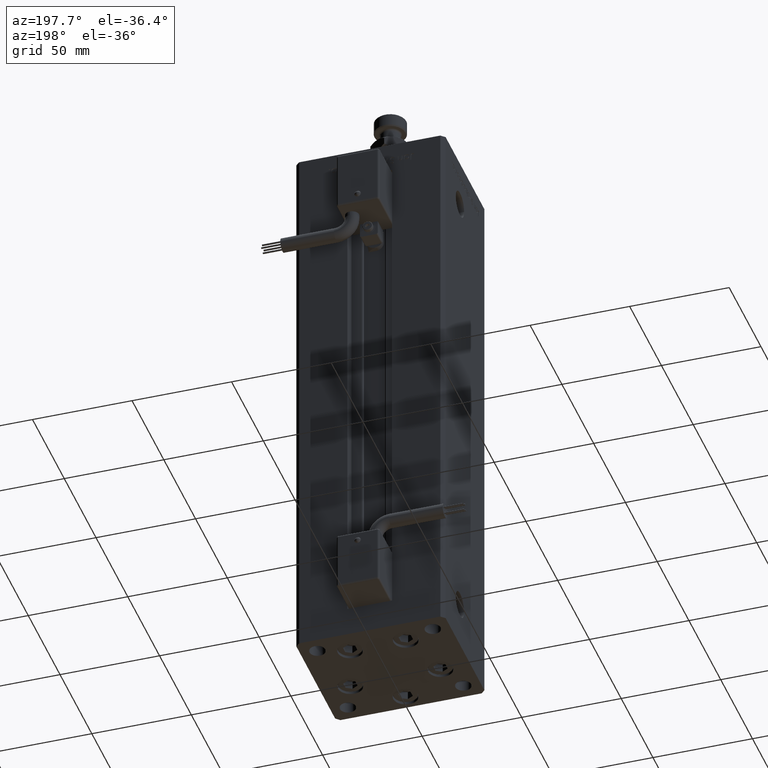
[diagram: clean part render]
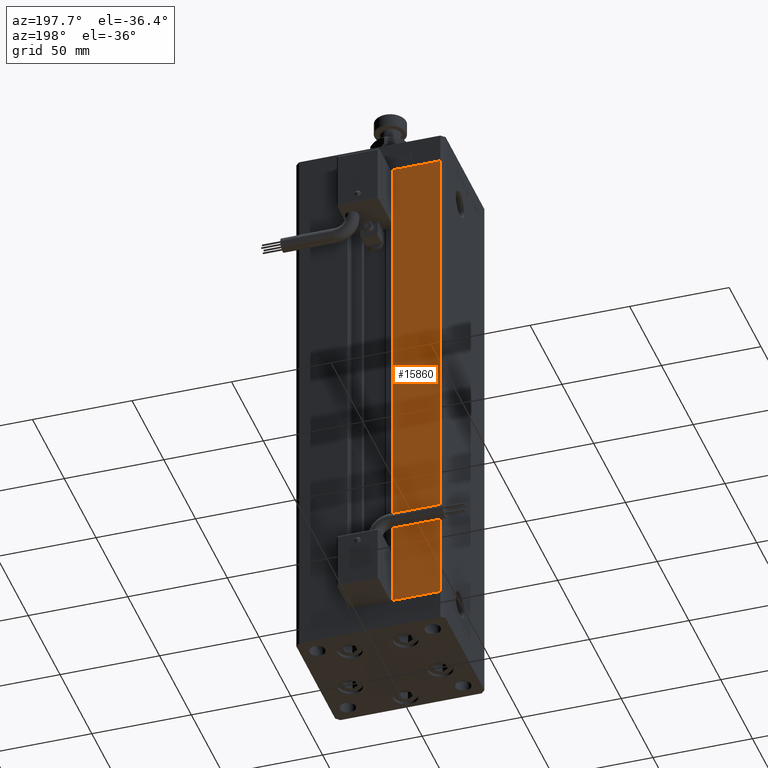
[diagram: same view with one face highlighted and labeled with its STEP entity id]
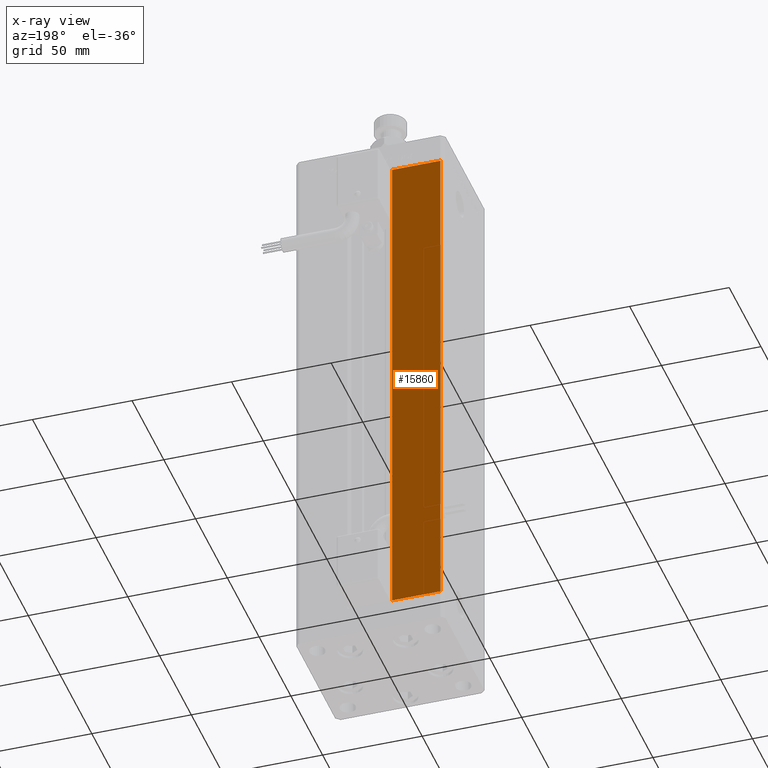
[diagram: x-ray of the same camera — body ghosted, the highlighted face saturated]
A machine part, auxiliary view. The second image highlights one B-rep face of the part: STEP entity #15860.
The next image is the same camera in x-ray: the body ghosted, the highlighted face saturated — about 0% of this face is hidden behind the body in this view.
In plain terms, the highlighted planar face has unit normal (0, -1, 0).
Its self-contained STEP definition (entity closure, byte-faithful):
#1708 = VECTOR ( 'NONE', #33234, 1000.000000000000000 ) ;
#2669 = ORIENTED_EDGE ( 'NONE', *, *, #35943, .T. ) ;
#4783 = VERTEX_POINT ( 'NONE', #27084 ) ;
#13273 = VERTEX_POINT ( 'NONE', #16538 ) ;
#14819 = PLANE ( 'NONE',  #27096 ) ;
#15196 = CARTESIAN_POINT ( 'NONE',  ( -35.50000000000000000, 32.49999999999999289, 0.000000000000000000 ) ) ;
#15860 = ADVANCED_FACE ( 'NONE', ( #18301 ), #14819, .F. ) ;
#16405 = CARTESIAN_POINT ( 'NONE',  ( -11.25000000000000178, 32.49999999999999289, 0.000000000000000000 ) ) ;
#16538 = CARTESIAN_POINT ( 'NONE',  ( -35.50000000000000000, 32.49999999999999289, 256.0000000000000000 ) ) ;
#18301 = FACE_OUTER_BOUND ( 'NONE', #18788, .T. ) ;
#18567 = CARTESIAN_POINT ( 'NONE',  ( -11.25000000000000178, 32.49999999999999289, 0.000000000000000000 ) ) ;
#18788 = EDGE_LOOP ( 'NONE', ( #18920, #25552, #2669, #54063 ) ) ;
#18920 = ORIENTED_EDGE ( 'NONE', *, *, #51636, .T. ) ;
#19430 = DIRECTION ( 'NONE',  ( 0.000000000000000000, -0.000000000000000000, -1.000000000000000000 ) ) ;
#19805 = DIRECTION ( 'NONE',  ( -0.000000000000000000, -0.000000000000000000, -1.000000000000000000 ) ) ;
#23923 = VERTEX_POINT ( 'NONE', #15196 ) ;
#25207 = VECTOR ( 'NONE', #19805, 1000.000000000000000 ) ;
#25552 = ORIENTED_EDGE ( 'NONE', *, *, #33618, .F. ) ;
#26924 = VECTOR ( 'NONE', #34933, 1000.000000000000000 ) ;
#27084 = CARTESIAN_POINT ( 'NONE',  ( -11.25000000000000178, 32.49999999999999289, 256.0000000000000000 ) ) ;
#27096 = AXIS2_PLACEMENT_3D ( 'NONE', #44992, #31500, #19430 ) ;
#31500 = DIRECTION ( 'NONE',  ( 0.000000000000000000, -1.000000000000000000, 0.000000000000000000 ) ) ;
#32950 = CARTESIAN_POINT ( 'NONE',  ( -11.25000000000000178, 32.49999999999999289, 0.000000000000000000 ) ) ;
#33234 = DIRECTION ( 'NONE',  ( -1.000000000000000000, 0.000000000000000000, 0.000000000000000000 ) ) ;
#33618 = EDGE_CURVE ( 'NONE', #52476, #4783, #38224, .T. ) ;
#34933 = DIRECTION ( 'NONE',  ( 1.000000000000000000, 0.000000000000000000, 0.000000000000000000 ) ) ;
#35507 = CARTESIAN_POINT ( 'NONE',  ( -11.25000000000000178, 32.49999999999999289, 256.0000000000000000 ) ) ;
#35943 = EDGE_CURVE ( 'NONE', #52476, #23923, #49433, .T. ) ;
#37867 = CARTESIAN_POINT ( 'NONE',  ( -35.50000000000000000, 32.49999999999999289, 256.0000000000000000 ) ) ;
#38224 = LINE ( 'NONE', #16405, #42918 ) ;
#39352 = EDGE_CURVE ( 'NONE', #13273, #23923, #49970, .T. ) ;
#42918 = VECTOR ( 'NONE', #43384, 1000.000000000000000 ) ;
#43000 = LINE ( 'NONE', #35507, #26924 ) ;
#43384 = DIRECTION ( 'NONE',  ( -0.000000000000000000, -0.000000000000000000, 1.000000000000000000 ) ) ;
#44992 = CARTESIAN_POINT ( 'NONE',  ( -11.25000000000000178, 32.49999999999999289, 256.0000000000000000 ) ) ;
#49433 = LINE ( 'NONE', #32950, #1708 ) ;
#49970 = LINE ( 'NONE', #37867, #25207 ) ;
#51636 = EDGE_CURVE ( 'NONE', #13273, #4783, #43000, .T. ) ;
#52476 = VERTEX_POINT ( 'NONE', #18567 ) ;
#54063 = ORIENTED_EDGE ( 'NONE', *, *, #39352, .F. ) ;